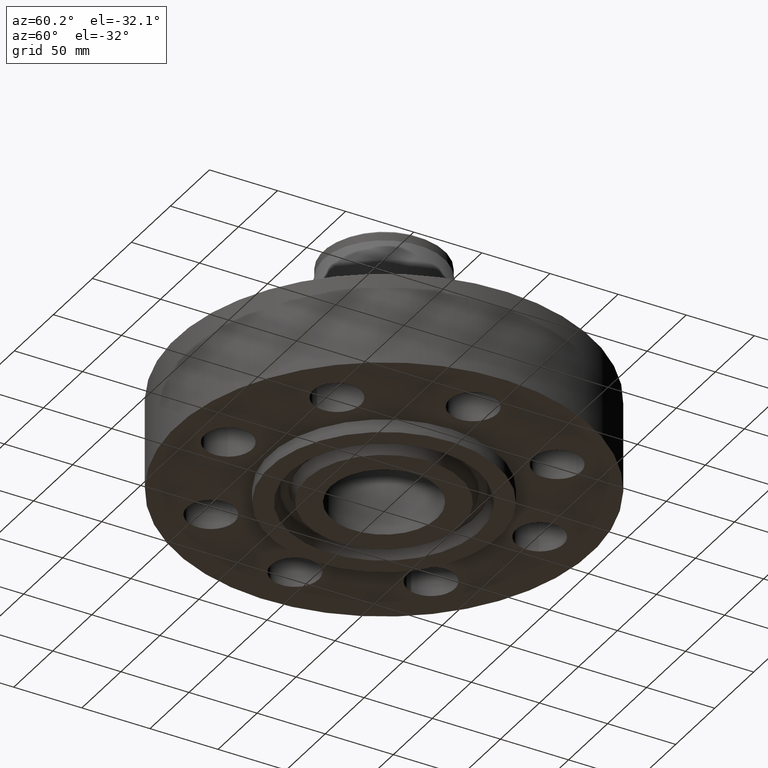
[diagram: clean part render]
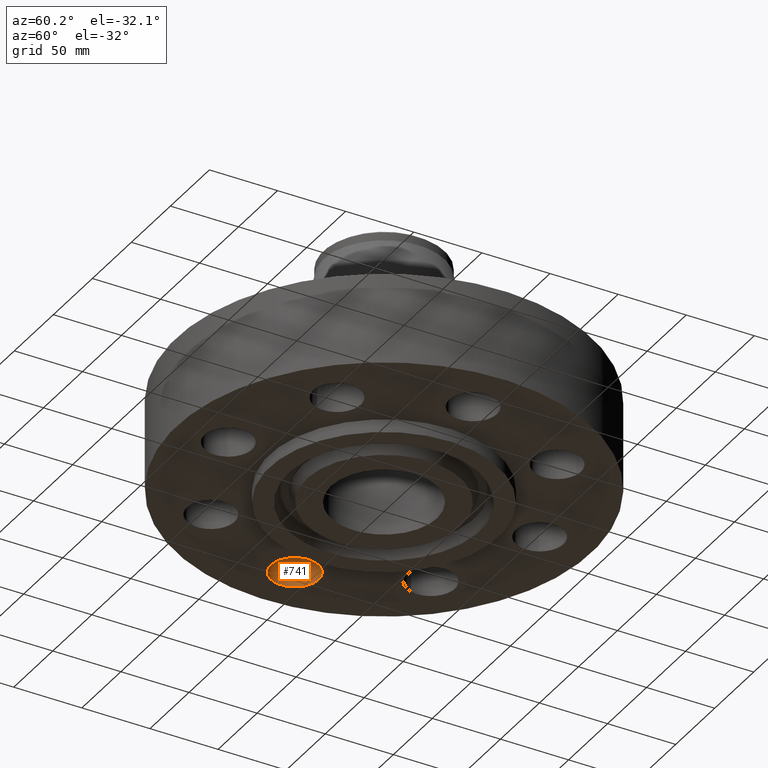
[diagram: same view with one face highlighted and labeled with its STEP entity id]
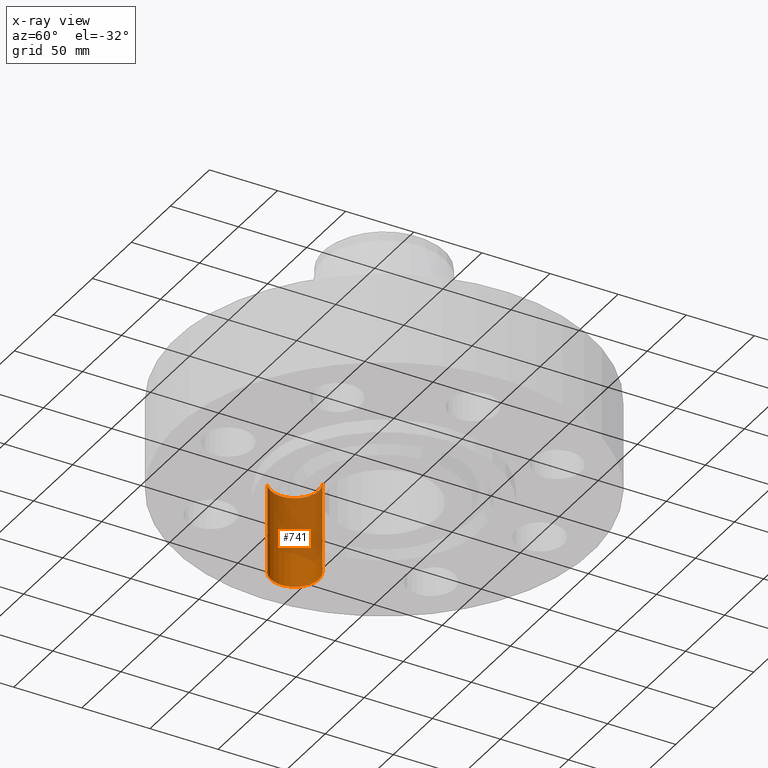
[diagram: x-ray of the same camera — body ghosted, the highlighted face saturated]
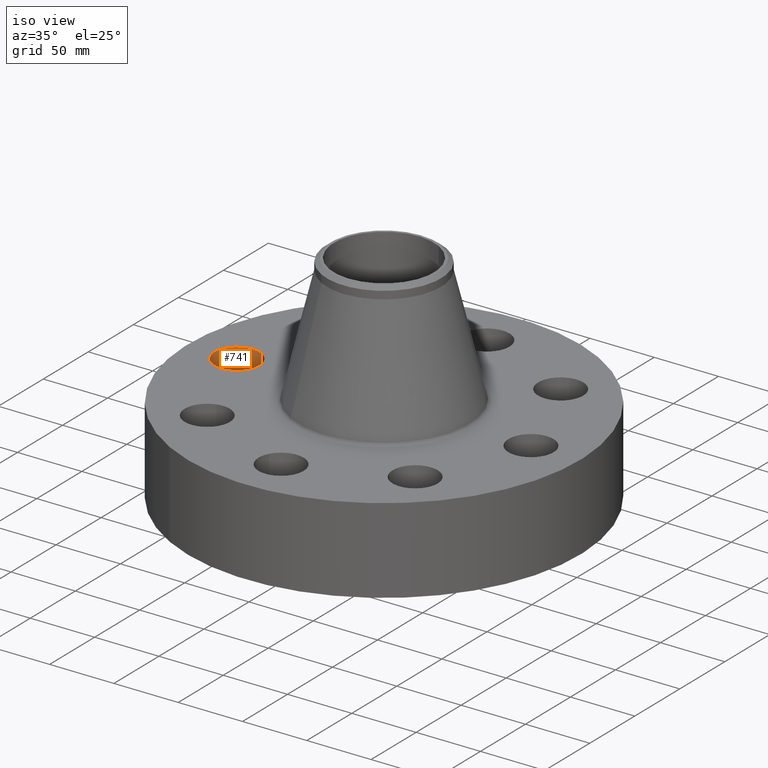
[diagram: same view with one face highlighted and labeled with its STEP entity id]
A machine part, auxiliary view. The second image highlights one B-rep face of the part: STEP entity #741.
The next image is the same camera in x-ray: the body ghosted, the highlighted face saturated — about 67% of this face is hidden behind the body in this view.
A second angle (iso view) of the same face is appended — the face is thin or edge-on in the first view.
In plain terms, the highlighted cylindrical surface (edge-blend (fillet) strip) has radius 17.526 mm, axis along (0, 0, -1).
Its self-contained STEP definition (entity closure, byte-faithful):
#590=AXIS2_PLACEMENT_3D('Circle Axis2P3D',#588,#589,$) ;
#714=AXIS2_PLACEMENT_3D('Cylinder Axis2P3D',#711,#712,#713) ;
#732=AXIS2_PLACEMENT_3D('Circle Axis2P3D',#730,#731,$) ;
#588=CARTESIAN_POINT('Axis2P3D Location',(-4.50000000002,-1.1189649382E-015,0.)) ;
#592=CARTESIAN_POINT('Vertex',(-4.83080362166,-0.605531967707,0.)) ;
#594=CARTESIAN_POINT('Vertex',(-4.16919637838,0.605531967707,0.)) ;
#711=CARTESIAN_POINT('Axis2P3D Location',(-4.50000000002,-8.26636589428E-016,2.61606299214)) ;
#716=CARTESIAN_POINT('Line Origine',(-4.83080362166,-0.605531967707,1.31000000001)) ;
#720=CARTESIAN_POINT('Vertex',(-4.83080362166,-0.605531967707,2.62000000001)) ;
#723=CARTESIAN_POINT('Line Origine',(-4.16919637838,0.605531967707,1.31000000001)) ;
#727=CARTESIAN_POINT('Vertex',(-4.16919637838,0.605531967707,2.62000000001)) ;
#730=CARTESIAN_POINT('Axis2P3D Location',(-4.50000000002,-8.26636589428E-016,2.62000000001)) ;
#589=DIRECTION('Axis2P3D Direction',(0.,0.,-0.0393700787402)) ;
#712=DIRECTION('Axis2P3D Direction',(0.,0.,-0.0393700787402)) ;
#713=DIRECTION('Axis2P3D XDirection',(0.0188750212049,0.0345504945626,0.)) ;
#717=DIRECTION('Vector Direction',(0.,0.,-0.0393700787402)) ;
#724=DIRECTION('Vector Direction',(0.,0.,-0.0393700787402)) ;
#731=DIRECTION('Axis2P3D Direction',(0.,0.,-0.0393700787402)) ;
#718=VECTOR('Line Direction',#717,0.0393700787402) ;
#725=VECTOR('Line Direction',#724,0.0393700787402) ;
#736=ORIENTED_EDGE('',*,*,#722,.F.) ;
#737=ORIENTED_EDGE('',*,*,#596,.T.) ;
#738=ORIENTED_EDGE('',*,*,#729,.T.) ;
#739=ORIENTED_EDGE('',*,*,#734,.F.) ;
#741=ADVANCED_FACE('PartBody',(#740),#715,.F.) ;
#591=CIRCLE('generated circle',#590,0.690000000003) ;
#733=CIRCLE('generated circle',#732,0.690000000003) ;
#715=CYLINDRICAL_SURFACE('generated cylinder',#714,0.690000000003) ;
#596=EDGE_CURVE('',#593,#595,#591,.T.) ;
#722=EDGE_CURVE('',#593,#721,#719,.F.) ;
#729=EDGE_CURVE('',#595,#728,#726,.F.) ;
#734=EDGE_CURVE('',#721,#728,#733,.T.) ;
#735=EDGE_LOOP('',(#736,#737,#738,#739)) ;
#740=FACE_OUTER_BOUND('',#735,.T.) ;
#719=LINE('Line',#716,#718) ;
#726=LINE('Line',#723,#725) ;
#593=VERTEX_POINT('',#592) ;
#595=VERTEX_POINT('',#594) ;
#721=VERTEX_POINT('',#720) ;
#728=VERTEX_POINT('',#727) ;